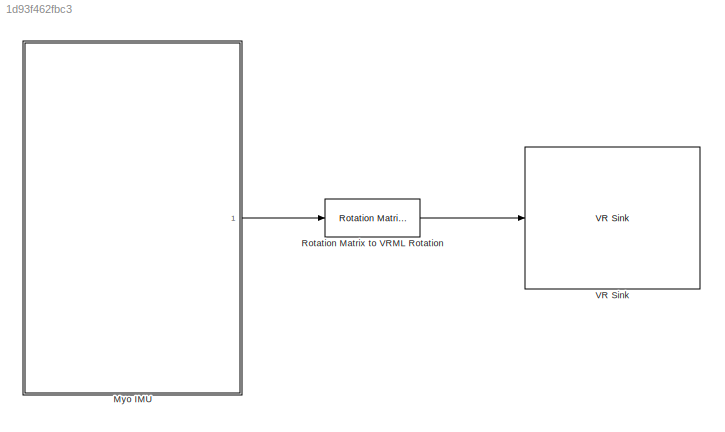
MODEL slx_1d93f462fbc3
KIND model
CONFIG AbsTol = auto
CONFIG EnableMultiTasking = on
CONFIG FixedStep = 0.02
CONFIG MaxStep = auto
CONFIG MinStep = auto
CONFIG RelTol = 1e-3
CONFIG SampleTimeConstraint = Unconstrained
CONFIG Solver = ode1
CONFIG SolverName = ode1
CONFIG StartTime = 0.0
CONFIG StopTime = inf
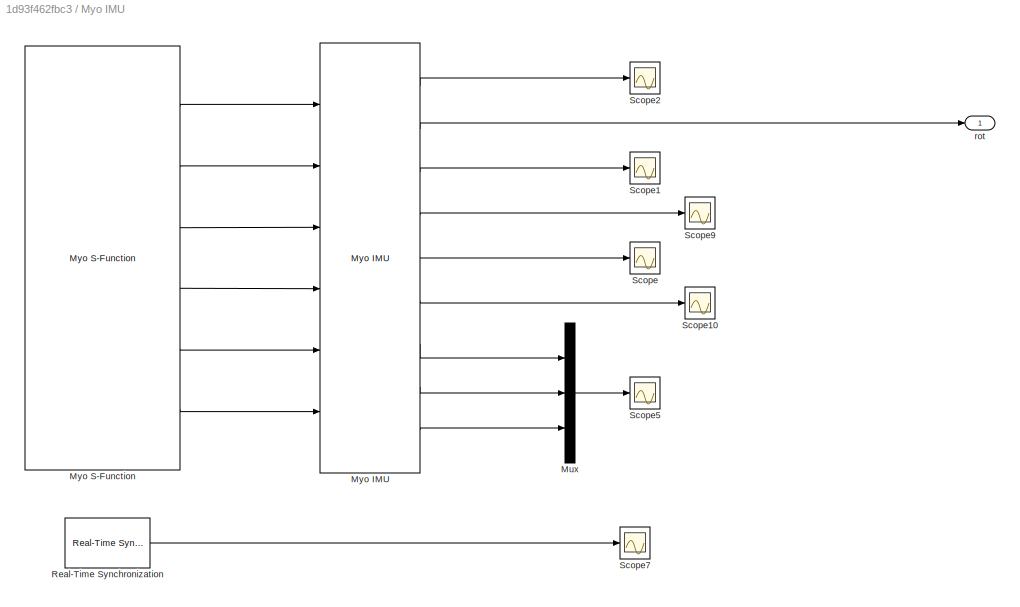
BLOCK [SubSystem] Myo IMU
  Ports = [0, 1]
  RequestExecContextInheritance = off
BLOCK [Mux] Myo IMU/Mux
  DisplayOption = bar
  Inputs = 3
  Ports = [3, 1]
BLOCK [Reference] Myo IMU/Myo IMU  REF=myo_lib/Myo IMU  (lib defined in slx_a57fffc76f72)
  Ports = [6, 9]
  SourceBlock = myo_lib/Myo IMU
  SourceType = SubSystem
BLOCK [Reference] Myo IMU/Myo S-Function  REF=myo_lib/Myo S-Function  (lib defined in slx_a57fffc76f72)
  Ports = [0, 6]
  SourceBlock = myo_lib/Myo S-Function
BLOCK [Reference] Myo IMU/Real-Time Synchronization  REF=rtwinlib/Real-Time
Synchronization
  Ports = [0, 1]
  SourceBlock = rtwinlib/Real-Time\nSynchronization
  SourceProductBaseCode = WT
  SourceProductName = Simulink Desktop Real-Time
  SourceType = RTWin Real-Time Synchronization
BLOCK [Scope] Myo IMU/Scope
  Floating = off
  NumInputPorts = 1
  Ports = [1]
  ScopeSpecificationString = C++SS(StrPVP('Location','[805, 623, 1489, 858]'),StrPVP('Open','off'),StrPVP('ZoomMode','yonly'),MxPVP('AxesTitles',54,'struct(''axes1'',''%<SignalLabel>'')'),MxPVP('ScopeGraphics',57,'struct(''FigureColor'',''[0.5 0.5 0.5]'',''AxesColor'',''[0 0 0]'',''AxesTickColor'',''[1 1 1]'',''LineColors'',''[1 1 0;1 0 1;0 1 1;1 0 0;0 1 0;0 0 1]'',''LineStyles'',''-|-|-|-|-|-'',''LineWidths'',''[0.5 0.5 0.5 ...<+267ch>
BLOCK [Scope] Myo IMU/Scope1
  Floating = off
  NumInputPorts = 1
  Ports = [1]
  ScopeSpecificationString = C++SS(StrPVP('Location','[839, 349, 1473, 564]'),StrPVP('Open','off'),StrPVP('ZoomMode','yonly'),MxPVP('AxesTitles',54,'struct(''axes1'',''%<SignalLabel>'')'),MxPVP('ScopeGraphics',57,'struct(''FigureColor'',''[0.5 0.5 0.5]'',''AxesColor'',''[0 0 0]'',''AxesTickColor'',''[1 1 1]'',''LineColors'',''[1 1 0;1 0 1;0 1 1;1 0 0;0 1 0;0 0 1]'',''LineStyles'',''-|-|-|-|-|-'',''LineWidths'',''[0.5 0.5 0.5 ...<+343ch>
BLOCK [Scope] Myo IMU/Scope10
  Floating = off
  NumInputPorts = 1
  Ports = [1]
  ScopeSpecificationString = C++SS(StrPVP('Location','[9, 86, 953, 1191]'),StrPVP('Open','off'),StrPVP('ZoomMode','yonly'),MxPVP('AxesTitles',54,'struct(''axes1'',''%<SignalLabel>'')'),MxPVP('ScopeGraphics',57,'struct(''FigureColor'',''[0.5 0.5 0.5]'',''AxesColor'',''[0 0 0]'',''AxesTickColor'',''[1 1 1]'',''LineColors'',''[1 1 0;1 0 1;0 1 1;1 0 0;0 1 0;0 0 1]'',''LineStyles'',''-|-|-|-|-|-'',''LineWidths'',''[0.5 0.5 0.5 0.5...<+297ch>
BLOCK [Scope] Myo IMU/Scope2
  Floating = off
  NumInputPorts = 1
  Ports = [1]
  ScopeSpecificationString = C++SS(StrPVP('Location','[231, 484, 719, 666]'),StrPVP('Open','off'),StrPVP('ZoomMode','xonly'),MxPVP('AxesTitles',54,'struct(''axes1'',''%<SignalLabel>'')'),MxPVP('ScopeGraphics',57,'struct(''FigureColor'',''[0.5 0.5 0.5]'',''AxesColor'',''[0 0 0]'',''AxesTickColor'',''[1 1 1]'',''LineColors'',''[1 1 0;1 0 1;0 1 1;1 0 0;0 1 0;0 0 1]'',''LineStyles'',''-|-|-|-|-|-'',''LineWidths'',''[0.5 0.5 0.5 0...<+341ch>
BLOCK [Scope] Myo IMU/Scope5
  Floating = off
  NumInputPorts = 1
  Ports = [1]
  ScopeSpecificationString = C++SS(StrPVP('Location','[94, 231, 728, 618]'),StrPVP('Open','off'),StrPVP('ZoomMode','yonly'),MxPVP('AxesTitles',54,'struct(''axes1'',''%<SignalLabel>'')'),MxPVP('ScopeGraphics',57,'struct(''FigureColor'',''[0.5 0.5 0.5]'',''AxesColor'',''[0 0 0]'',''AxesTickColor'',''[1 1 1]'',''LineColors'',''[1 1 0;1 0 1;0 1 1;1 0 0;0 1 0;0 0 1]'',''LineStyles'',''-|-|-|-|-|-'',''LineWidths'',''[0.5 0.5 0.5 0....<+297ch>
BLOCK [Scope] Myo IMU/Scope7
  Floating = off
  NumInputPorts = 1
  Ports = [1]
  ScopeSpecificationString = C++SS(StrPVP('Location','[869, 609, 1386, 841]'),StrPVP('Open','off'),StrPVP('ZoomMode','yonly'),MxPVP('AxesTitles',54,'struct(''axes1'',''%<SignalLabel>'')'),MxPVP('ScopeGraphics',57,'struct(''FigureColor'',''[0.5 0.5 0.5]'',''AxesColor'',''[0 0 0]'',''AxesTickColor'',''[1 1 1]'',''LineColors'',''[1 1 0;1 0 1;0 1 1;1 0 0;0 1 0;0 0 1]'',''LineStyles'',''-|-|-|-|-|-'',''LineWidths'',''[0.5 0.5 0.5 ...<+367ch>
BLOCK [Scope] Myo IMU/Scope9
  Floating = off
  NumInputPorts = 1
  Ports = [1]
  ScopeSpecificationString = C++SS(StrPVP('Location','[9, 86, 953, 1191]'),StrPVP('Open','off'),StrPVP('ZoomMode','yonly'),MxPVP('AxesTitles',54,'struct(''axes1'',''%<SignalLabel>'')'),MxPVP('ScopeGraphics',57,'struct(''FigureColor'',''[0.5 0.5 0.5]'',''AxesColor'',''[0 0 0]'',''AxesTickColor'',''[1 1 1]'',''LineColors'',''[1 1 0;1 0 1;0 1 1;1 0 0;0 1 0;0 0 1]'',''LineStyles'',''-|-|-|-|-|-'',''LineWidths'',''[0.5 0.5 0.5 0.5...<+341ch>
BLOCK [Outport] Myo IMU/rot
  IconDisplay = Port number
BLOCK [Reference] Rotation Matrix to VRML Rotation  REF=vrlib/Utilities/Rotation Matrix
to VR Rotation
  Ports = [1, 1]
  SourceBlock = vrlib/Utilities/Rotation Matrix\nto VR Rotation
  SourceProductBaseCode = SL
  SourceProductName = Simulink
  SourceType = Rotation Matrix to VR Rotation
BLOCK [Reference] VR Sink  REF=vrlib/VR Sink
  InstantiateOnLoad = on
  Ports = [1]
  SourceBlock = vrlib/VR Sink
  SourceProductBaseCode = SL
  SourceProductName = Simulink
  SourceType = Virtual Reality Sink
LINE Myo IMU/Mux:1 -> Myo IMU/Scope5:1
LINE Myo IMU/Myo IMU:1 -> Myo IMU/Scope2:1
LINE Myo IMU/Myo IMU:2 -> Myo IMU/rot:1
LINE Myo IMU/Myo IMU:3 -> Myo IMU/Scope1:1
LINE Myo IMU/Myo IMU:4 -> Myo IMU/Scope9:1
LINE Myo IMU/Myo IMU:5 -> Myo IMU/Scope:1
LINE Myo IMU/Myo IMU:6 -> Myo IMU/Scope10:1
LINE Myo IMU/Myo IMU:7 -> Myo IMU/Mux:1
LINE Myo IMU/Myo IMU:8 -> Myo IMU/Mux:2
LINE Myo IMU/Myo IMU:9 -> Myo IMU/Mux:3
LINE Myo IMU/Myo S-Function:1 -> Myo IMU/Myo IMU:1
LINE Myo IMU/Myo S-Function:2 -> Myo IMU/Myo IMU:2
LINE Myo IMU/Myo S-Function:3 -> Myo IMU/Myo IMU:3
LINE Myo IMU/Myo S-Function:4 -> Myo IMU/Myo IMU:4
LINE Myo IMU/Myo S-Function:5 -> Myo IMU/Myo IMU:5
LINE Myo IMU/Myo S-Function:6 -> Myo IMU/Myo IMU:6
LINE Myo IMU/Real-Time Synchronization:1 -> Myo IMU/Scope7:1
LINE Myo IMU:1 -> Rotation Matrix to VRML Rotation:1
LINE Rotation Matrix to VRML Rotation:1 -> VR Sink:1
